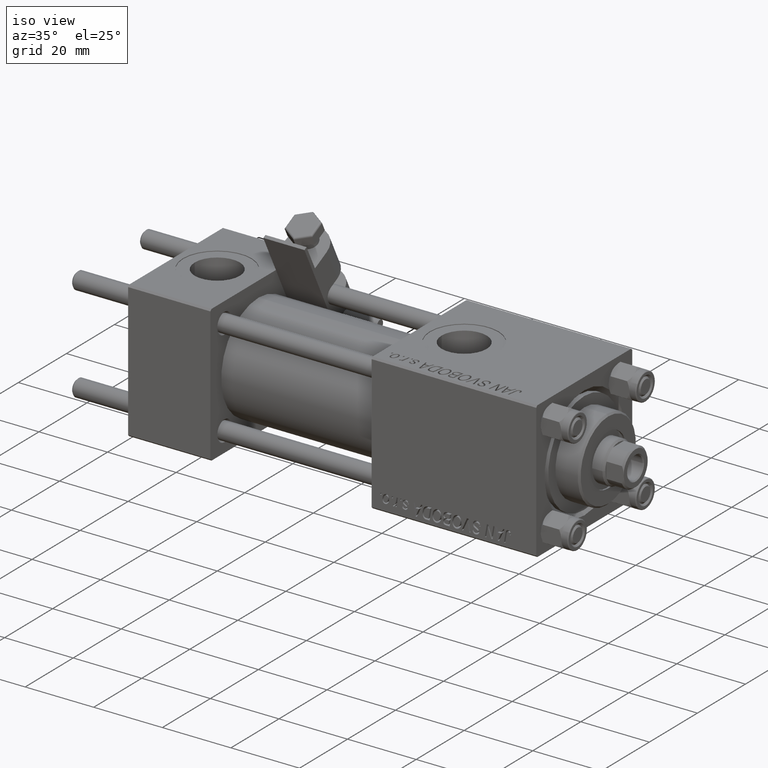
[diagram: clean part render]
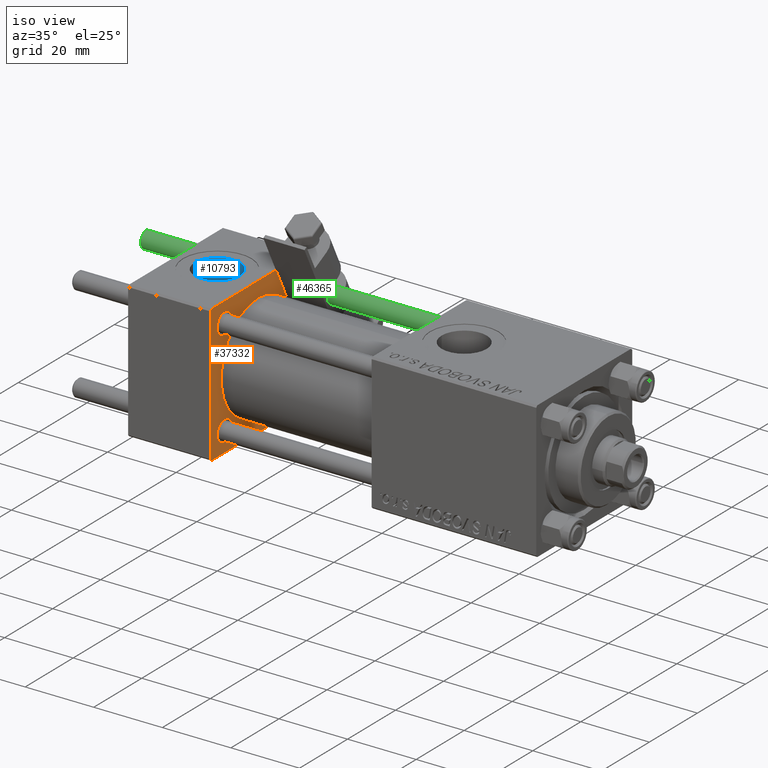
[diagram: same view with three faces highlighted in distinct colors, each labeled with its STEP entity id]
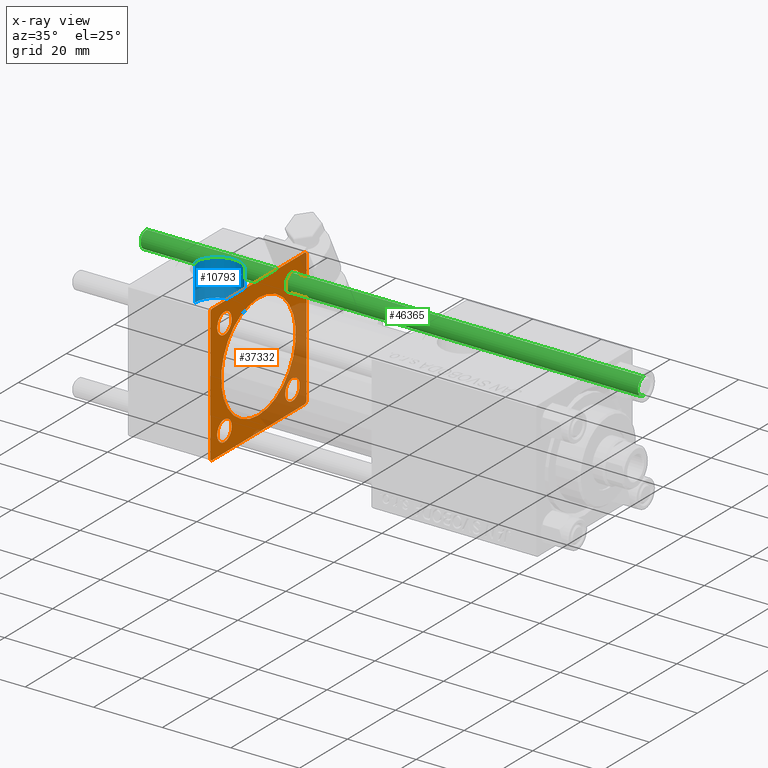
[diagram: x-ray of the same camera — body ghosted, the three highlighted faces saturated]
A machine part, iso view with three faces highlighted in distinct colors.
The next image is the same camera in x-ray (body ghosted, the three faces saturated) — at least one of them is partly hidden behind the body in this view.
Their STEP definitions:

[orange] entity #37332 — the highlighted planar face has unit normal (-1, 0, 0).
#224 = EDGE_CURVE ( 'NONE', #44217, #6680, #25716, .T. ) ;
#281 = CARTESIAN_POINT ( 'NONE',  ( 24.00000000000000000, -14.14999999999999503, 14.15000000000000391 ) ) ;
#908 = DIRECTION ( 'NONE',  ( 1.000000000000000000, 0.000000000000000000, 0.000000000000000000 ) ) ;
#1219 = CARTESIAN_POINT ( 'NONE',  ( 24.00000000000000000, 1.898202538678397557E-15, -15.50000000000000000 ) ) ;
#1437 = VECTOR ( 'NONE', #18391, 1000.000000000000000 ) ;
#1745 = DIRECTION ( 'NONE',  ( -1.000000000000000000, 0.000000000000000000, -0.000000000000000000 ) ) ;
#1879 = CARTESIAN_POINT ( 'NONE',  ( 24.00000000000000000, 20.00000000000000000, 20.00000000000000000 ) ) ;
#2200 = LINE ( 'NONE', #20737, #43324 ) ;
#2211 = VECTOR ( 'NONE', #48056, 1000.000000000000000 ) ;
#2279 = CARTESIAN_POINT ( 'NONE',  ( 24.00000000000000000, -14.14999999999999503, -14.15000000000000391 ) ) ;
#2714 = CARTESIAN_POINT ( 'NONE',  ( 24.00000000000000000, -19.50000000000000711, -20.00000000000000000 ) ) ;
#3013 = CARTESIAN_POINT ( 'NONE',  ( 24.00000000000000000, 14.14999999999999858, -14.15000000000000036 ) ) ;
#3431 = ORIENTED_EDGE ( 'NONE', *, *, #224, .F. ) ;
#3517 = ORIENTED_EDGE ( 'NONE', *, *, #14598, .T. ) ;
#3651 = AXIS2_PLACEMENT_3D ( 'NONE', #20203, #908, #36142 ) ;
#3708 = EDGE_CURVE ( 'NONE', #45881, #25656, #4811, .T. ) ;
#4096 = VERTEX_POINT ( 'NONE', #41018 ) ;
#4166 = EDGE_CURVE ( 'NONE', #44217, #47501, #28165, .T. ) ;
#4267 = LINE ( 'NONE', #1879, #28644 ) ;
#4386 = DIRECTION ( 'NONE',  ( 0.000000000000000000, 0.000000000000000000, 1.000000000000000000 ) ) ;
#4811 = LINE ( 'NONE', #41084, #24528 ) ;
#4908 = CIRCLE ( 'NONE', #26272, 3.000000000000000888 ) ;
#5058 = AXIS2_PLACEMENT_3D ( 'NONE', #281, #12118, #19326 ) ;
#5081 = DIRECTION ( 'NONE',  ( 0.000000000000000000, 8.673617379884036705E-17, -1.000000000000000000 ) ) ;
#5350 = PLANE ( 'NONE',  #39363 ) ;
#5475 = EDGE_CURVE ( 'NONE', #44914, #47501, #4267, .T. ) ;
#5597 = CARTESIAN_POINT ( 'NONE',  ( 24.00000000000000000, -20.00000000000000355, 19.99999999999998934 ) ) ;
#5847 = VERTEX_POINT ( 'NONE', #36028 ) ;
#5870 = FACE_BOUND ( 'NONE', #13981, .T. ) ;
#6047 = CARTESIAN_POINT ( 'NONE',  ( 24.00000000000000000, -20.00000000000000355, 19.49999999999998224 ) ) ;
#6680 = VERTEX_POINT ( 'NONE', #33018 ) ;
#6805 = CARTESIAN_POINT ( 'NONE',  ( 24.00000000000000000, -14.14999999999999503, -14.15000000000000391 ) ) ;
#8147 = CARTESIAN_POINT ( 'NONE',  ( 24.00000000000000000, 14.14999999999999858, -17.14999999999997726 ) ) ;
#8325 = CIRCLE ( 'NONE', #5058, 3.000000000000000888 ) ;
#8987 = VERTEX_POINT ( 'NONE', #17569 ) ;
#9386 = DIRECTION ( 'NONE',  ( -0.000000000000000000, 0.7071067811865524577, 0.7071067811865426878 ) ) ;
#9410 = ORIENTED_EDGE ( 'NONE', *, *, #34263, .T. ) ;
#9575 = AXIS2_PLACEMENT_3D ( 'NONE', #20953, #24552, #20698 ) ;
#9644 = DIRECTION ( 'NONE',  ( 0.000000000000000000, 0.000000000000000000, 1.000000000000000000 ) ) ;
#9941 = CARTESIAN_POINT ( 'NONE',  ( 24.00000000000000000, 19.50000000000000000, 20.00000000000000000 ) ) ;
#10504 = EDGE_CURVE ( 'NONE', #4096, #37850, #4908, .T. ) ;
#10659 = CARTESIAN_POINT ( 'NONE',  ( 24.00000000000000000, -14.14999999999999503, -11.15000000000000391 ) ) ;
#10917 = DIRECTION ( 'NONE',  ( -0.000000000000000000, -0.7071067811865500152, -0.7071067811865451302 ) ) ;
#11013 = VERTEX_POINT ( 'NONE', #1219 ) ;
#11226 = DIRECTION ( 'NONE',  ( -1.000000000000000000, -0.000000000000000000, -0.000000000000000000 ) ) ;
#11648 = ORIENTED_EDGE ( 'NONE', *, *, #4166, .T. ) ;
#12118 = DIRECTION ( 'NONE',  ( -1.000000000000000000, -0.000000000000000000, -0.000000000000000000 ) ) ;
#12897 = CARTESIAN_POINT ( 'NONE',  ( 24.00000000000000000, -20.00000000000000355, 19.49999999999998224 ) ) ;
#12918 = ORIENTED_EDGE ( 'NONE', *, *, #50151, .T. ) ;
#13281 = EDGE_CURVE ( 'NONE', #25656, #15940, #41787, .T. ) ;
#13496 = CARTESIAN_POINT ( 'NONE',  ( 24.00000000000000000, 20.00000000000000000, -19.50000000000002132 ) ) ;
#13981 = EDGE_LOOP ( 'NONE', ( #20786, #12918 ) ) ;
#14598 = EDGE_CURVE ( 'NONE', #28549, #45992, #8325, .T. ) ;
#14626 = AXIS2_PLACEMENT_3D ( 'NONE', #31656, #16201, #4386 ) ;
#15105 = DIRECTION ( 'NONE',  ( 1.000000000000000000, 0.000000000000000000, 0.000000000000000000 ) ) ;
#15940 = VERTEX_POINT ( 'NONE', #12897 ) ;
#16089 = CARTESIAN_POINT ( 'NONE',  ( 24.00000000000000000, 14.14999999999999858, -11.15000000000002700 ) ) ;
#16201 = DIRECTION ( 'NONE',  ( -1.000000000000000000, -0.000000000000000000, -0.000000000000000000 ) ) ;
#16711 = DIRECTION ( 'NONE',  ( -1.000000000000000000, -0.000000000000000000, -0.000000000000000000 ) ) ;
#16780 = CIRCLE ( 'NONE', #37333, 2.999999999999976463 ) ;
#17117 = DIRECTION ( 'NONE',  ( 0.000000000000000000, -0.7071067811865425767, 0.7071067811865525687 ) ) ;
#17569 = CARTESIAN_POINT ( 'NONE',  ( 24.00000000000000000, 14.14999999999999858, 11.15000000000002700 ) ) ;
#17958 = DIRECTION ( 'NONE',  ( 0.000000000000000000, 0.000000000000000000, 1.000000000000000000 ) ) ;
#17968 = CARTESIAN_POINT ( 'NONE',  ( 24.00000000000000000, 20.00000000000000000, -20.00000000000000711 ) ) ;
#18096 = EDGE_CURVE ( 'NONE', #15940, #5847, #20259, .T. ) ;
#18391 = DIRECTION ( 'NONE',  ( 0.000000000000000000, 0.7071067811865401342, -0.7071067811865549002 ) ) ;
#18694 = DIRECTION ( 'NONE',  ( 0.000000000000000000, 0.000000000000000000, 1.000000000000000000 ) ) ;
#19326 = DIRECTION ( 'NONE',  ( 0.000000000000000000, 0.000000000000000000, 1.000000000000000000 ) ) ;
#20203 = CARTESIAN_POINT ( 'NONE',  ( 24.00000000000000000, 0.000000000000000000, 0.000000000000000000 ) ) ;
#20259 = LINE ( 'NONE', #5597, #33930 ) ;
#20265 = VERTEX_POINT ( 'NONE', #28079 ) ;
#20698 = DIRECTION ( 'NONE',  ( 0.000000000000000000, 0.000000000000000000, 1.000000000000000000 ) ) ;
#20737 = CARTESIAN_POINT ( 'NONE',  ( 24.00000000000000000, 19.50000000000000000, 20.00000000000000000 ) ) ;
#20786 = ORIENTED_EDGE ( 'NONE', *, *, #21627, .T. ) ;
#20918 = CIRCLE ( 'NONE', #29954, 2.999999999999976463 ) ;
#20953 = CARTESIAN_POINT ( 'NONE',  ( 24.00000000000000000, -14.14999999999999503, 14.15000000000000391 ) ) ;
#21049 = DIRECTION ( 'NONE',  ( -0.000000000000000000, 0.000000000000000000, 1.000000000000000000 ) ) ;
#21070 = DIRECTION ( 'NONE',  ( -1.000000000000000000, -0.000000000000000000, -0.000000000000000000 ) ) ;
#21287 = EDGE_LOOP ( 'NONE', ( #3431, #11648, #34796, #32281, #26420, #24073, #26482, #22030 ) ) ;
#21552 = DIRECTION ( 'NONE',  ( 0.000000000000000000, -1.000000000000000000, -2.602085213965210149E-16 ) ) ;
#21567 = FACE_OUTER_BOUND ( 'NONE', #21287, .T. ) ;
#21627 = EDGE_CURVE ( 'NONE', #29402, #28545, #20918, .T. ) ;
#21886 = CIRCLE ( 'NONE', #28434, 15.50000000000000000 ) ;
#22030 = ORIENTED_EDGE ( 'NONE', *, *, #33750, .T. ) ;
#22042 = ORIENTED_EDGE ( 'NONE', *, *, #25337, .F. ) ;
#24073 = ORIENTED_EDGE ( 'NONE', *, *, #13281, .T. ) ;
#24497 = EDGE_LOOP ( 'NONE', ( #22042, #30326 ) ) ;
#24528 = VECTOR ( 'NONE', #21552, 1000.000000000000000 ) ;
#24552 = DIRECTION ( 'NONE',  ( -1.000000000000000000, -0.000000000000000000, -0.000000000000000000 ) ) ;
#25337 = EDGE_CURVE ( 'NONE', #30712, #11013, #21886, .T. ) ;
#25656 = VERTEX_POINT ( 'NONE', #36174 ) ;
#25716 = LINE ( 'NONE', #17968, #2211 ) ;
#25880 = CARTESIAN_POINT ( 'NONE',  ( 24.00000000000000000, 20.00000000000000000, 19.49999999999999289 ) ) ;
#26272 = AXIS2_PLACEMENT_3D ( 'NONE', #6805, #41523, #9644 ) ;
#26420 = ORIENTED_EDGE ( 'NONE', *, *, #3708, .T. ) ;
#26482 = ORIENTED_EDGE ( 'NONE', *, *, #18096, .T. ) ;
#26669 = EDGE_CURVE ( 'NONE', #45992, #28549, #31733, .T. ) ;
#26699 = CARTESIAN_POINT ( 'NONE',  ( 24.00000000000000000, 0.000000000000000000, 0.000000000000000000 ) ) ;
#27162 = EDGE_LOOP ( 'NONE', ( #32968, #30536 ) ) ;
#27284 = EDGE_CURVE ( 'NONE', #8987, #20265, #27697, .T. ) ;
#27697 = CIRCLE ( 'NONE', #49027, 2.999999999999976463 ) ;
#28054 = CARTESIAN_POINT ( 'NONE',  ( 24.00000000000000000, 14.14999999999999858, 14.15000000000000036 ) ) ;
#28079 = CARTESIAN_POINT ( 'NONE',  ( 24.00000000000000000, 14.14999999999999858, 17.14999999999997726 ) ) ;
#28165 = LINE ( 'NONE', #13496, #44235 ) ;
#28434 = AXIS2_PLACEMENT_3D ( 'NONE', #26699, #15105, #30808 ) ;
#28545 = VERTEX_POINT ( 'NONE', #16089 ) ;
#28549 = VERTEX_POINT ( 'NONE', #43622 ) ;
#28619 = CIRCLE ( 'NONE', #14626, 2.999999999999976463 ) ;
#28644 = VECTOR ( 'NONE', #48935, 1000.000000000000000 ) ;
#29303 = CARTESIAN_POINT ( 'NONE',  ( 24.00000000000000000, 14.14999999999999858, -14.15000000000000036 ) ) ;
#29402 = VERTEX_POINT ( 'NONE', #8147 ) ;
#29435 = CIRCLE ( 'NONE', #31073, 3.000000000000000888 ) ;
#29954 = AXIS2_PLACEMENT_3D ( 'NONE', #29303, #34164, #49343 ) ;
#30326 = ORIENTED_EDGE ( 'NONE', *, *, #50211, .F. ) ;
#30536 = ORIENTED_EDGE ( 'NONE', *, *, #34942, .T. ) ;
#30712 = VERTEX_POINT ( 'NONE', #42301 ) ;
#30808 = DIRECTION ( 'NONE',  ( 0.000000000000000000, 0.000000000000000000, 1.000000000000000000 ) ) ;
#30944 = ORIENTED_EDGE ( 'NONE', *, *, #10504, .T. ) ;
#31073 = AXIS2_PLACEMENT_3D ( 'NONE', #2279, #21070, #17958 ) ;
#31656 = CARTESIAN_POINT ( 'NONE',  ( 24.00000000000000000, 14.14999999999999858, 14.15000000000000036 ) ) ;
#31733 = CIRCLE ( 'NONE', #9575, 3.000000000000000888 ) ;
#32281 = ORIENTED_EDGE ( 'NONE', *, *, #33684, .T. ) ;
#32402 = CIRCLE ( 'NONE', #3651, 15.50000000000000000 ) ;
#32968 = ORIENTED_EDGE ( 'NONE', *, *, #27284, .T. ) ;
#33018 = CARTESIAN_POINT ( 'NONE',  ( 24.00000000000000000, -19.50000000000000711, -20.00000000000000000 ) ) ;
#33132 = CARTESIAN_POINT ( 'NONE',  ( 24.00000000000000000, 0.000000000000000000, 0.000000000000000000 ) ) ;
#33684 = EDGE_CURVE ( 'NONE', #44914, #45881, #2200, .T. ) ;
#33750 = EDGE_CURVE ( 'NONE', #5847, #6680, #42305, .T. ) ;
#33930 = VECTOR ( 'NONE', #5081, 1000.000000000000000 ) ;
#34164 = DIRECTION ( 'NONE',  ( -1.000000000000000000, -0.000000000000000000, -0.000000000000000000 ) ) ;
#34263 = EDGE_CURVE ( 'NONE', #37850, #4096, #29435, .T. ) ;
#34796 = ORIENTED_EDGE ( 'NONE', *, *, #5475, .F. ) ;
#34942 = EDGE_CURVE ( 'NONE', #20265, #8987, #28619, .T. ) ;
#35345 = CARTESIAN_POINT ( 'NONE',  ( 24.00000000000000000, -14.14999999999999503, 17.15000000000000568 ) ) ;
#36028 = CARTESIAN_POINT ( 'NONE',  ( 24.00000000000000000, -20.00000000000000000, -19.49999999999999645 ) ) ;
#36142 = DIRECTION ( 'NONE',  ( 0.000000000000000000, 0.000000000000000000, 1.000000000000000000 ) ) ;
#36174 = CARTESIAN_POINT ( 'NONE',  ( 24.00000000000000000, -19.49999999999999289, 19.99999999999998934 ) ) ;
#36987 = FACE_BOUND ( 'NONE', #45171, .T. ) ;
#37332 = ADVANCED_FACE ( 'NONE', ( #36987, #5870, #49056, #44955, #48802, #21567 ), #5350, .F. ) ;
#37333 = AXIS2_PLACEMENT_3D ( 'NONE', #3013, #11226, #18694 ) ;
#37850 = VERTEX_POINT ( 'NONE', #10659 ) ;
#39363 = AXIS2_PLACEMENT_3D ( 'NONE', #33132, #1745, #21049 ) ;
#40905 = DIRECTION ( 'NONE',  ( 0.000000000000000000, 0.000000000000000000, 1.000000000000000000 ) ) ;
#41018 = CARTESIAN_POINT ( 'NONE',  ( 24.00000000000000000, -14.14999999999999503, -17.15000000000000568 ) ) ;
#41084 = CARTESIAN_POINT ( 'NONE',  ( 24.00000000000000000, 20.00000000000000000, 20.00000000000000000 ) ) ;
#41523 = DIRECTION ( 'NONE',  ( -1.000000000000000000, -0.000000000000000000, -0.000000000000000000 ) ) ;
#41787 = LINE ( 'NONE', #6047, #45275 ) ;
#42301 = CARTESIAN_POINT ( 'NONE',  ( 24.00000000000000000, 0.000000000000000000, 15.50000000000000000 ) ) ;
#42305 = LINE ( 'NONE', #2714, #1437 ) ;
#42575 = CARTESIAN_POINT ( 'NONE',  ( 24.00000000000000000, 20.00000000000000000, -19.50000000000002132 ) ) ;
#43324 = VECTOR ( 'NONE', #17117, 999.9999999999998863 ) ;
#43622 = CARTESIAN_POINT ( 'NONE',  ( 24.00000000000000000, -14.14999999999999503, 11.15000000000000391 ) ) ;
#44217 = VERTEX_POINT ( 'NONE', #50387 ) ;
#44235 = VECTOR ( 'NONE', #9386, 1000.000000000000000 ) ;
#44914 = VERTEX_POINT ( 'NONE', #25880 ) ;
#44955 = FACE_BOUND ( 'NONE', #27162, .T. ) ;
#45171 = EDGE_LOOP ( 'NONE', ( #30944, #9410 ) ) ;
#45275 = VECTOR ( 'NONE', #10917, 1000.000000000000114 ) ;
#45881 = VERTEX_POINT ( 'NONE', #9941 ) ;
#45992 = VERTEX_POINT ( 'NONE', #35345 ) ;
#47501 = VERTEX_POINT ( 'NONE', #42575 ) ;
#48053 = EDGE_LOOP ( 'NONE', ( #3517, #49204 ) ) ;
#48056 = DIRECTION ( 'NONE',  ( 0.000000000000000000, -1.000000000000000000, 1.734723475976807094E-16 ) ) ;
#48802 = FACE_BOUND ( 'NONE', #24497, .T. ) ;
#48935 = DIRECTION ( 'NONE',  ( 0.000000000000000000, 0.000000000000000000, -1.000000000000000000 ) ) ;
#49027 = AXIS2_PLACEMENT_3D ( 'NONE', #28054, #16711, #40905 ) ;
#49056 = FACE_BOUND ( 'NONE', #48053, .T. ) ;
#49204 = ORIENTED_EDGE ( 'NONE', *, *, #26669, .T. ) ;
#49343 = DIRECTION ( 'NONE',  ( 0.000000000000000000, 0.000000000000000000, 1.000000000000000000 ) ) ;
#50151 = EDGE_CURVE ( 'NONE', #28545, #29402, #16780, .T. ) ;
#50211 = EDGE_CURVE ( 'NONE', #11013, #30712, #32402, .T. ) ;
#50387 = CARTESIAN_POINT ( 'NONE',  ( 24.00000000000000000, 19.50000000000000711, -20.00000000000000711 ) ) ;

[blue] entity #10793 — the highlighted cylindrical surface (edge-blend (fillet) strip) has radius 6.58 mm, axis along (0, 0, 1).
#1440 = AXIS2_PLACEMENT_3D ( 'NONE', #17180, #13334, #4583 ) ;
#4583 = DIRECTION ( 'NONE',  ( 1.000000000000000000, 0.000000000000000000, 0.000000000000000000 ) ) ;
#9267 = DIRECTION ( 'NONE',  ( 1.000000000000000000, 0.000000000000000000, 0.000000000000000000 ) ) ;
#10036 = DIRECTION ( 'NONE',  ( -0.000000000000000000, -0.000000000000000000, 1.000000000000000000 ) ) ;
#10793 = ADVANCED_FACE ( 'NONE', ( #44497 ), #49111, .F. ) ;
#13334 = DIRECTION ( 'NONE',  ( 0.000000000000000000, 0.000000000000000000, 1.000000000000000000 ) ) ;
#13888 = CARTESIAN_POINT ( 'NONE',  ( 12.00000000000000000, 1.540743955509788682E-30, 9.199999999999995737 ) ) ;
#15729 = CIRCLE ( 'NONE', #22345, 6.579999999999999183 ) ;
#16053 = EDGE_CURVE ( 'NONE', #37209, #20712, #15729, .T. ) ;
#16880 = ORIENTED_EDGE ( 'NONE', *, *, #16053, .T. ) ;
#17180 = CARTESIAN_POINT ( 'NONE',  ( 12.00000000000000000, 1.540743955509788682E-30, 19.79999999999999716 ) ) ;
#17210 = AXIS2_PLACEMENT_3D ( 'NONE', #13888, #10036, #9267 ) ;
#18032 = VERTEX_POINT ( 'NONE', #34690 ) ;
#18545 = LINE ( 'NONE', #26777, #18773 ) ;
#18773 = VECTOR ( 'NONE', #34743, 1000.000000000000000 ) ;
#20527 = CARTESIAN_POINT ( 'NONE',  ( 5.420000000000000817, 8.058175938389596335E-16, 9.165987261146492315 ) ) ;
#20712 = VERTEX_POINT ( 'NONE', #47543 ) ;
#22345 = AXIS2_PLACEMENT_3D ( 'NONE', #36045, #28855, #44539 ) ;
#22723 = VECTOR ( 'NONE', #32170, 1000.000000000000000 ) ;
#24980 = VERTEX_POINT ( 'NONE', #32246 ) ;
#25261 = CIRCLE ( 'NONE', #1440, 6.579999999999999183 ) ;
#26777 = CARTESIAN_POINT ( 'NONE',  ( 18.57999999999999829, 1.540743955509788682E-30, 9.199999999999995737 ) ) ;
#28315 = LINE ( 'NONE', #35516, #22723 ) ;
#28368 = EDGE_CURVE ( 'NONE', #24980, #18032, #25261, .T. ) ;
#28855 = DIRECTION ( 'NONE',  ( -0.000000000000000000, -0.000000000000000000, -1.000000000000000000 ) ) ;
#29947 = EDGE_CURVE ( 'NONE', #37209, #18032, #28315, .T. ) ;
#30816 = ORIENTED_EDGE ( 'NONE', *, *, #28368, .T. ) ;
#32170 = DIRECTION ( 'NONE',  ( -0.000000000000000000, -0.000000000000000000, 1.000000000000000000 ) ) ;
#32246 = CARTESIAN_POINT ( 'NONE',  ( 18.57999999999999829, 1.540743955509788682E-30, 19.79999999999999716 ) ) ;
#34690 = CARTESIAN_POINT ( 'NONE',  ( 5.420000000000000817, 8.058175938389596335E-16, 19.79999999999999716 ) ) ;
#34743 = DIRECTION ( 'NONE',  ( -0.000000000000000000, -0.000000000000000000, 1.000000000000000000 ) ) ;
#35419 = EDGE_CURVE ( 'NONE', #20712, #24980, #18545, .T. ) ;
#35516 = CARTESIAN_POINT ( 'NONE',  ( 5.420000000000000817, 8.058175938389596335E-16, 9.199999999999995737 ) ) ;
#36045 = CARTESIAN_POINT ( 'NONE',  ( 12.00000000000000000, 1.540743955509788682E-30, 9.165987261146492315 ) ) ;
#36623 = ORIENTED_EDGE ( 'NONE', *, *, #29947, .F. ) ;
#37209 = VERTEX_POINT ( 'NONE', #20527 ) ;
#40871 = EDGE_LOOP ( 'NONE', ( #36623, #16880, #48659, #30816 ) ) ;
#44497 = FACE_OUTER_BOUND ( 'NONE', #40871, .T. ) ;
#44539 = DIRECTION ( 'NONE',  ( 1.000000000000000000, 0.000000000000000000, 0.000000000000000000 ) ) ;
#47543 = CARTESIAN_POINT ( 'NONE',  ( 18.57999999999999829, 1.540743955509788682E-30, 9.165987261146492315 ) ) ;
#48659 = ORIENTED_EDGE ( 'NONE', *, *, #35419, .T. ) ;
#49111 = CYLINDRICAL_SURFACE ( 'NONE', #17210, 6.579999999999999183 ) ;

[green] entity #46365 — the highlighted cylindrical surface (edge-blend (fillet) strip) has radius 2.5 mm, axis along (-1, -0, -0).
#1002 = FACE_OUTER_BOUND ( 'NONE', #49838, .T. ) ;
#1226 = CARTESIAN_POINT ( 'NONE',  ( -2.500000000000000000, 0.000000000000000000, 146.0000000000000000 ) ) ;
#1873 = ORIENTED_EDGE ( 'NONE', *, *, #12355, .T. ) ;
#2032 = CYLINDRICAL_SURFACE ( 'NONE', #21467, 2.500000000000000000 ) ;
#2190 = DIRECTION ( 'NONE',  ( 0.000000000000000000, 0.000000000000000000, -1.000000000000000000 ) ) ;
#5562 = LINE ( 'NONE', #21769, #37711 ) ;
#6566 = VERTEX_POINT ( 'NONE', #9675 ) ;
#9675 = CARTESIAN_POINT ( 'NONE',  ( -2.500000000000000000, 0.000000000000000000, 145.5000000000000284 ) ) ;
#9821 = EDGE_CURVE ( 'NONE', #50406, #50093, #5562, .T. ) ;
#9920 = CIRCLE ( 'NONE', #49339, 2.500000000000000000 ) ;
#12355 = EDGE_CURVE ( 'NONE', #50406, #6566, #9920, .T. ) ;
#13860 = EDGE_CURVE ( 'NONE', #6566, #48631, #44702, .T. ) ;
#17287 = CARTESIAN_POINT ( 'NONE',  ( -2.500000000000000000, 0.000000000000000000, 0.5000000000000559552 ) ) ;
#18381 = DIRECTION ( 'NONE',  ( -0.000000000000000000, -0.000000000000000000, 1.000000000000000000 ) ) ;
#19026 = CIRCLE ( 'NONE', #37103, 2.500000000000000000 ) ;
#19442 = CARTESIAN_POINT ( 'NONE',  ( 2.500000000000000000, 3.061616997868383141E-16, 0.5000000000000559552 ) ) ;
#21338 = DIRECTION ( 'NONE',  ( -0.000000000000000000, -0.000000000000000000, -1.000000000000000000 ) ) ;
#21467 = AXIS2_PLACEMENT_3D ( 'NONE', #48313, #21338, #41135 ) ;
#21769 = CARTESIAN_POINT ( 'NONE',  ( 2.500000000000000000, 3.061616997868383141E-16, 146.0000000000000000 ) ) ;
#23440 = ORIENTED_EDGE ( 'NONE', *, *, #13860, .T. ) ;
#24635 = ORIENTED_EDGE ( 'NONE', *, *, #9821, .F. ) ;
#25866 = CARTESIAN_POINT ( 'NONE',  ( 0.000000000000000000, 0.000000000000000000, 145.5000000000000284 ) ) ;
#33334 = DIRECTION ( 'NONE',  ( -0.000000000000000000, -0.000000000000000000, -1.000000000000000000 ) ) ;
#34319 = DIRECTION ( 'NONE',  ( 1.000000000000000000, 0.000000000000000000, 0.000000000000000000 ) ) ;
#37051 = VECTOR ( 'NONE', #41356, 1000.000000000000000 ) ;
#37103 = AXIS2_PLACEMENT_3D ( 'NONE', #50246, #18381, #45903 ) ;
#37711 = VECTOR ( 'NONE', #33334, 1000.000000000000000 ) ;
#38429 = CARTESIAN_POINT ( 'NONE',  ( 2.500000000000000000, 3.061616997868383141E-16, 145.5000000000000284 ) ) ;
#41135 = DIRECTION ( 'NONE',  ( -1.000000000000000000, 0.000000000000000000, 0.000000000000000000 ) ) ;
#41356 = DIRECTION ( 'NONE',  ( -0.000000000000000000, -0.000000000000000000, -1.000000000000000000 ) ) ;
#42446 = ORIENTED_EDGE ( 'NONE', *, *, #42777, .T. ) ;
#42777 = EDGE_CURVE ( 'NONE', #48631, #50093, #19026, .T. ) ;
#44702 = LINE ( 'NONE', #1226, #37051 ) ;
#45903 = DIRECTION ( 'NONE',  ( 1.000000000000000000, 0.000000000000000000, 0.000000000000000000 ) ) ;
#46365 = ADVANCED_FACE ( 'NONE', ( #1002 ), #2032, .T. ) ;
#48313 = CARTESIAN_POINT ( 'NONE',  ( 0.000000000000000000, 0.000000000000000000, 146.0000000000000000 ) ) ;
#48631 = VERTEX_POINT ( 'NONE', #17287 ) ;
#49339 = AXIS2_PLACEMENT_3D ( 'NONE', #25866, #2190, #34319 ) ;
#49838 = EDGE_LOOP ( 'NONE', ( #24635, #1873, #23440, #42446 ) ) ;
#50093 = VERTEX_POINT ( 'NONE', #19442 ) ;
#50246 = CARTESIAN_POINT ( 'NONE',  ( 0.000000000000000000, 0.000000000000000000, 0.5000000000000559552 ) ) ;
#50406 = VERTEX_POINT ( 'NONE', #38429 ) ;